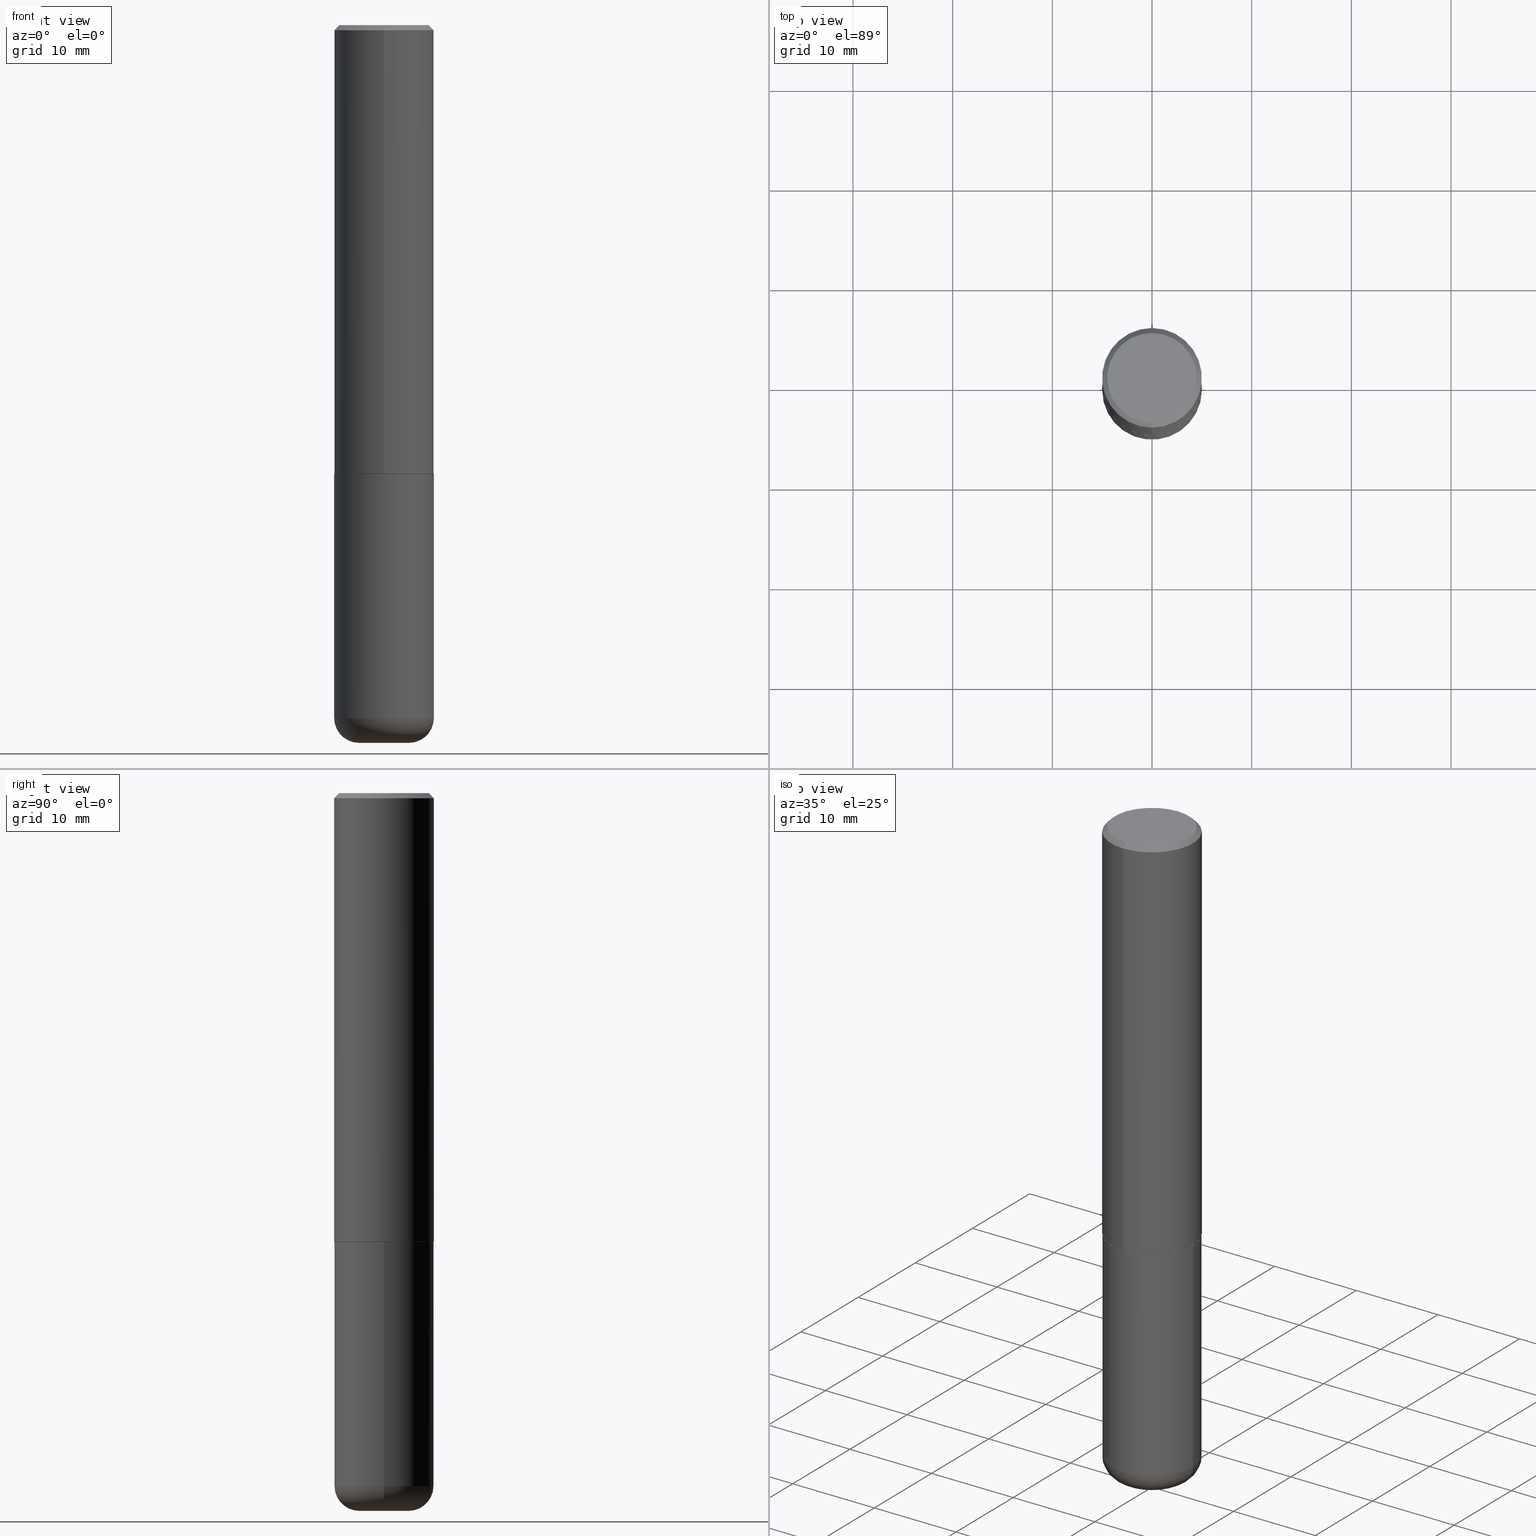
[diagram: canonical four-view strip — front | top / right | iso, engineering-drawing reading convention]
A machine part, canonical four-view strip (front | top / right | iso — engineering-drawing reading convention). The complete STEP part file that produces these views, byte-faithful:
ISO-10303-21;
HEADER;
FILE_DESCRIPTION (( 'STEP AP203' ),
    '1' );
FILE_NAME ('43482.STEP',
    '2024-03-04T05:26:18',
    ( '' ),
    ( '' ),
    'SwSTEP 2.0',
    'SolidWorks 2023',
    '' );
FILE_SCHEMA (( 'CONFIG_CONTROL_DESIGN' ));
ENDSEC;

DATA;
#1 = DIRECTION ( 'NONE',  ( 6.982962677686265133E-15, 1.000000000000000000, -3.491137977679279424E-15 ) ) ;
#2 = CIRCLE ( 'NONE', #71, 0.1968500000000001915 ) ;
#3 = LOCAL_TIME ( 0, 26, 18.00000000000000000, #180 ) ;
#4 = DIRECTION ( 'NONE',  ( -6.982962677686265133E-15, -1.000000000000000000, 4.184602492209747448E-15 ) ) ;
#5 = CARTESIAN_POINT ( 'NONE',  ( 0.000000000000000000, 0.000000000000000000, 0.000000000000000000 ) ) ;
#6 = DIRECTION ( 'NONE',  ( -1.000000000000000000, 7.105427357601001859E-15, 0.000000000000000000 ) ) ;
#7 = CARTESIAN_POINT ( 'NONE',  ( 4.332805681799319957E-29, -6.177923161224234260E-15, -1.770599999999999730 ) ) ;
#8 = VERTEX_POINT ( 'NONE', #18 ) ;
#9 =( NAMED_UNIT ( * ) SI_UNIT ( $, .STERADIAN. ) SOLID_ANGLE_UNIT ( ) );
#10 = ORIENTED_EDGE ( 'NONE', *, *, #264, .T. ) ;
#11 = DIRECTION ( 'NONE',  ( 1.000000000000000000, -6.982962677686266711E-15, 4.876176775795935793E-29 ) ) ;
#12 = VERTEX_POINT ( 'NONE', #279 ) ;
#13 = FACE_OUTER_BOUND ( 'NONE', #137, .T. ) ;
#14 = ORIENTED_EDGE ( 'NONE', *, *, #333, .T. ) ;
#15 = AXIS2_PLACEMENT_3D ( 'NONE', #125, #227, #357 ) ;
#16 = ORIENTED_EDGE ( 'NONE', *, *, #79, .F. ) ;
#17 = ADVANCED_FACE ( 'NONE', ( #216 ), #177, .F. ) ;
#18 = CARTESIAN_POINT ( 'NONE',  ( 0.09845000000000002360, -1.058442567870299660E-14, -2.834600000000000453 ) ) ;
#19 = PERSON_AND_ORGANIZATION ( #120, #94 ) ;
#20 = CARTESIAN_POINT ( 'NONE',  ( -1.350489030861325429E-15, -0.1968500000000000805, -0.01999999999999935510 ) ) ;
#21 = CIRCLE ( 'NONE', #329, 0.09845000000000002360 ) ;
#22 = AXIS2_PLACEMENT_3D ( 'NONE', #36, #394, #239 ) ;
#23 = ORIENTED_EDGE ( 'NONE', *, *, #264, .F. ) ;
#24 = DIRECTION ( 'NONE',  ( -2.445468806185136597E-29, 3.491481338843145583E-15, 1.000000000000000000 ) ) ;
#25 = DIRECTION ( 'NONE',  ( -2.447083294814932914E-29, 3.489169299234291357E-15, 1.000000000000000000 ) ) ;
#26 = EDGE_CURVE ( 'NONE', #295, #238, #412, .T. ) ;
#27 = CIRCLE ( 'NONE', #259, 0.1968500000000000250 ) ;
#28 = LOCAL_TIME ( 0, 26, 18.00000000000000000, #341 ) ;
#29 = CYLINDRICAL_SURFACE ( 'NONE', #317, 0.1968499999999999694 ) ;
#30 = CARTESIAN_POINT ( 'NONE',  ( 6.691291747483769253E-29, -9.553391239342614783E-15, -2.736199999999999743 ) ) ;
#31 = DIRECTION ( 'NONE',  ( -2.445468806185136597E-29, 3.491481338843145583E-15, 1.000000000000000000 ) ) ;
#32 = AXIS2_PLACEMENT_3D ( 'NONE', #62, #367, #95 ) ;
#33 = EDGE_CURVE ( 'NONE', #295, #185, #373, .T. ) ;
#34 = LINE ( 'NONE', #89, #157 ) ;
#35 = FACE_OUTER_BOUND ( 'NONE', #204, .T. ) ;
#36 = CARTESIAN_POINT ( 'NONE',  ( 6.931925878012389760E-29, -9.896953003084782463E-15, -2.834600000000000453 ) ) ;
#37 = ORIENTED_EDGE ( 'NONE', *, *, #377, .T. ) ;
#38 = VECTOR ( 'NONE', #312, 39.37007874015748143 ) ;
#39 = AXIS2_PLACEMENT_3D ( 'NONE', #194, #382, #287 ) ;
#40 = VERTEX_POINT ( 'NONE', #352 ) ;
#41 = EDGE_LOOP ( 'NONE', ( #108, #14, #395, #402 ) ) ;
#42 = PERSON_AND_ORGANIZATION_ROLE ( 'design_owner' ) ;
#43 = EDGE_LOOP ( 'NONE', ( #69, #297, #247, #269 ) ) ;
#44 = ADVANCED_FACE ( 'NONE', ( #51 ), #93, .T. ) ;
#45 = DIRECTION ( 'NONE',  ( 2.438088387897960049E-29, -3.491481338843145188E-15, -1.000000000000000000 ) ) ;
#46 = VERTEX_POINT ( 'NONE', #20 ) ;
#47 = DIRECTION ( 'NONE',  ( -2.445468806185136597E-29, 3.491481338843145583E-15, 1.000000000000000000 ) ) ;
#48 = DIRECTION ( 'NONE',  ( 1.000000000000000000, -6.982962677686273021E-15, 0.000000000000000000 ) ) ;
#49 = DIRECTION ( 'NONE',  ( -4.851104656540955597E-15, -0.7071067811865487940, -0.7071067811865461294 ) ) ;
#50 = COORDINATED_UNIVERSAL_TIME_OFFSET ( 5, 0, .BEHIND. ) ;
#51 = FACE_OUTER_BOUND ( 'NONE', #302, .T. ) ;
#52 = EDGE_CURVE ( 'NONE', #234, #46, #305, .T. ) ;
#53 = ORIENTED_EDGE ( 'NONE', *, *, #360, .T. ) ;
#54 = DIRECTION ( 'NONE',  ( -2.445468806185136877E-29, 3.491481338843145188E-15, 1.000000000000000000 ) ) ;
#55 = CIRCLE ( 'NONE', #221, 0.1968500000000000250 ) ;
#56 = CARTESIAN_POINT ( 'NONE',  ( 1.395150661665000474E-15, 0.1958499999999938068, -1.771600000000000508 ) ) ;
#57 = FACE_OUTER_BOUND ( 'NONE', #131, .T. ) ;
#58 = DIRECTION ( 'NONE',  ( 1.000000000000000000, -6.982962677686264344E-15, 4.883557194083112340E-29 ) ) ;
#59 = VECTOR ( 'NONE', #169, 39.37007874015748143 ) ;
#60 = CARTESIAN_POINT ( 'NONE',  ( 4.894166589629877283E-31, -6.978338598468595286E-17, -0.02000000000000004205 ) ) ;
#61 = EDGE_CURVE ( 'NONE', #196, #234, #296, .T. ) ;
#62 = CARTESIAN_POINT ( 'NONE',  ( 4.894166589629877283E-31, -6.978338598468595286E-17, -0.02000000000000004205 ) ) ;
#63 = ORIENTED_EDGE ( 'NONE', *, *, #104, .T. ) ;
#64 = DIRECTION ( 'NONE',  ( 1.000000000000000000, -6.982962677686273810E-15, 0.000000000000000000 ) ) ;
#65 = ORIENTED_EDGE ( 'NONE', *, *, #369, .F. ) ;
#66 = CYLINDRICAL_SURFACE ( 'NONE', #144, 0.1968499999999999694 ) ;
#67 = CIRCLE ( 'NONE', #311, 0.1968500000000001915 ) ;
#68 = ORIENTED_EDGE ( 'NONE', *, *, #403, .F. ) ;
#69 = ORIENTED_EDGE ( 'NONE', *, *, #217, .F. ) ;
#70 = ORIENTED_EDGE ( 'NONE', *, *, #274, .T. ) ;
#71 = AXIS2_PLACEMENT_3D ( 'NONE', #281, #84, #182 ) ;
#72 = ORIENTED_EDGE ( 'NONE', *, *, #381, .T. ) ;
#73 = LOCAL_TIME ( 0, 26, 18.00000000000000000, #76 ) ;
#74 = APPROVAL_ROLE ( '' ) ;
#75 = DIRECTION ( 'NONE',  ( 1.000000000000000000, -6.982962677686264344E-15, 4.883557194083112340E-29 ) ) ;
#76 = COORDINATED_UNIVERSAL_TIME_OFFSET ( 5, 0, .BEHIND. ) ;
#77 = FACE_OUTER_BOUND ( 'NONE', #102, .T. ) ;
#78 = CC_DESIGN_DATE_AND_TIME_ASSIGNMENT ( #141, #276, ( #413 ) ) ;
#79 = EDGE_CURVE ( 'NONE', #185, #46, #316, .T. ) ;
#80 = PERSON_AND_ORGANIZATION_ROLE ( 'design_supplier' ) ;
#81 = CARTESIAN_POINT ( 'NONE',  ( -1.374596203102542200E-15, -0.1968500000000001082, 6.868429765542706433E-16 ) ) ;
#82 = AXIS2_PLACEMENT_3D ( 'NONE', #232, #203, #294 ) ;
#83 = APPROVAL_STATUS ( 'not_yet_approved' ) ;
#84 = DIRECTION ( 'NONE',  ( -2.447083294814932914E-29, 3.489169299234290962E-15, 1.000000000000000000 ) ) ;
#85 = ADVANCED_FACE ( 'NONE', ( #179 ), #212, .T. ) ;
#86 = CARTESIAN_POINT ( 'NONE',  ( -0.09845000000000000973, -8.853861915986796673E-15, -2.736199999999999743 ) ) ;
#87 = CARTESIAN_POINT ( 'NONE',  ( 0.1968500000000001915, -1.092798744244515797E-14, -2.736199999999999743 ) ) ;
#88 = CIRCLE ( 'NONE', #39, 0.1958499999999999686 ) ;
#89 = CARTESIAN_POINT ( 'NONE',  ( 0.1968499999999999694, -1.374596203102541411E-15, 9.598753983154298056E-30 ) ) ;
#90 = CARTESIAN_POINT ( 'NONE',  ( -1.367613240424811418E-15, -0.1958500000000061581, -1.771599999999998953 ) ) ;
#91 = CARTESIAN_POINT ( 'NONE',  ( -4.053130985315826548E-29, -2.562817966197909100E-14, -2.834600000000000453 ) ) ;
#92 = ADVANCED_FACE ( 'NONE', ( #273 ), #344, .F. ) ;
#93 = CONICAL_SURFACE ( 'NONE', #339, 0.1958499999999999686, 0.7853981633975165577 ) ;
#94 = ORGANIZATION ( 'UNSPECIFIED', 'UNSPECIFIED', '' ) ;
#95 = DIRECTION ( 'NONE',  ( -6.982962677686265133E-15, -1.000000000000000000, 3.491137977679279424E-15 ) ) ;
#96 = DIRECTION ( 'NONE',  ( -2.445468806185136877E-29, 3.491481338843145188E-15, 1.000000000000000000 ) ) ;
#97 = EDGE_LOOP ( 'NONE', ( #391, #99 ) ) ;
#98 =( NAMED_UNIT ( * ) PLANE_ANGLE_UNIT ( ) SI_UNIT ( $, .RADIAN. ) );
#99 = ORIENTED_EDGE ( 'NONE', *, *, #190, .T. ) ;
#100 = AXIS2_PLACEMENT_3D ( 'NONE', #414, #410, #314 ) ;
#101 = FACE_OUTER_BOUND ( 'NONE', #266, .T. ) ;
#102 = EDGE_LOOP ( 'NONE', ( #372, #72 ) ) ;
#103 = PRODUCT_RELATED_PRODUCT_CATEGORY ( 'detail', '', ( #230 ) ) ;
#104 = EDGE_CURVE ( 'NONE', #283, #8, #21, .T. ) ;
#105 = CARTESIAN_POINT ( 'NONE',  ( -0.1968499999999999694, 1.398703375343756999E-15, -9.682923725166782276E-30 ) ) ;
#106 = ORIENTED_EDGE ( 'NONE', *, *, #104, .F. ) ;
#107 = CALENDAR_DATE ( 2024, 4, 3 ) ;
#108 = ORIENTED_EDGE ( 'NONE', *, *, #315, .T. ) ;
#109 = AXIS2_PLACEMENT_3D ( 'NONE', #140, #245, #147 ) ;
#110 = EDGE_LOOP ( 'NONE', ( #338, #63, #170, #361 ) ) ;
#111 = CONICAL_SURFACE ( 'NONE', #324, 0.1968500000000000250, 0.7853981633974467247 ) ;
#112 = PERSON_AND_ORGANIZATION ( #120, #94 ) ;
#113 = PLANE ( 'NONE',  #405 ) ;
#114 = DATE_AND_TIME ( #206, #288 ) ;
#115 = CARTESIAN_POINT ( 'NONE',  ( -1.367613240424811418E-15, -0.1958500000000061581, -1.771599999999998953 ) ) ;
#116 = CLOSED_SHELL ( 'NONE', ( #44, #407, #174, #257, #161, #235, #92, #17 ) ) ;
#117 = APPROVAL ( #83, 'UNSPECIFIED' ) ;
#118 = VECTOR ( 'NONE', #218, 39.37007874015748143 ) ;
#119 = DIRECTION ( 'NONE',  ( 2.438088387897960049E-29, -3.491481338843145188E-15, -1.000000000000000000 ) ) ;
#120 = PERSON ( 'UNSPECIFIED', 'UNSPECIFIED', 'UNSPECIFIED', ('UNSPECIFIED'), ('UNSPECIFIED'), ('UNSPECIFIED') ) ;
#121 = DIRECTION ( 'NONE',  ( 2.447083294814932914E-29, -3.489169299234290962E-15, -1.000000000000000000 ) ) ;
#122 = AXIS2_PLACEMENT_3D ( 'NONE', #60, #358, #1 ) ;
#123 = CC_DESIGN_PERSON_AND_ORGANIZATION_ASSIGNMENT ( #280, #80, ( #205 ) ) ;
#124 = DIRECTION ( 'NONE',  ( -2.447083294814932914E-29, 3.489169299234290962E-15, 1.000000000000000000 ) ) ;
#125 = CARTESIAN_POINT ( 'NONE',  ( 0.000000000000000000, 0.000000000000000000, 0.000000000000000000 ) ) ;
#126 = EDGE_CURVE ( 'NONE', #40, #231, #27, .T. ) ;
#127 = CC_DESIGN_APPROVAL ( #184, ( #413 ) ) ;
#128 = DIRECTION ( 'NONE',  ( -1.000000000000000000, 6.982962677686265922E-15, -4.876176775795935793E-29 ) ) ;
#129 = ORIENTED_EDGE ( 'NONE', *, *, #26, .F. ) ;
#130 = CARTESIAN_POINT ( 'NONE',  ( 0.000000000000000000, 0.000000000000000000, 0.000000000000000000 ) ) ;
#131 = EDGE_LOOP ( 'NONE', ( #263, #106 ) ) ;
#132 = CYLINDRICAL_SURFACE ( 'NONE', #398, 0.1968500000000001082 ) ;
#133 = ORIENTED_EDGE ( 'NONE', *, *, #315, .F. ) ;
#134 = DIRECTION ( 'NONE',  ( -6.982962677686266711E-15, -1.000000000000000000, 3.491481338843145583E-15 ) ) ;
#135 = ORIENTED_EDGE ( 'NONE', *, *, #52, .F. ) ;
#136 = COORDINATED_UNIVERSAL_TIME_OFFSET ( 5, 0, .BEHIND. ) ;
#137 = EDGE_LOOP ( 'NONE', ( #368, #335, #168, #345 ) ) ;
#138 = EDGE_CURVE ( 'NONE', #185, #271, #2, .T. ) ;
#139 = CALENDAR_DATE ( 2024, 4, 3 ) ;
#140 = CARTESIAN_POINT ( 'NONE',  ( 5.322760174831130967E-46, -7.589447988370287342E-32, -2.175144665532800578E-17 ) ) ;
#141 = DATE_AND_TIME ( #107, #28 ) ;
#142 = AXIS2_PLACEMENT_3D ( 'NONE', #150, #47, #75 ) ;
#143 = CARTESIAN_POINT ( 'NONE',  ( 4.332392537037587642E-29, -6.185508339894515992E-15, -1.771599999999999842 ) ) ;
#144 = AXIS2_PLACEMENT_3D ( 'NONE', #162, #392, #11 ) ;
#145 = EDGE_CURVE ( 'NONE', #12, #397, #383, .T. ) ;
#146 = CARTESIAN_POINT ( 'NONE',  ( -1.350489030861325429E-15, -0.1968500000000000805, -0.01999999999999935510 ) ) ;
#147 = DIRECTION ( 'NONE',  ( -6.982962677686265922E-15, -1.000000000000000000, 3.489169299234290962E-15 ) ) ;
#148 = ADVANCED_FACE ( 'NONE', ( #77 ), #113, .F. ) ;
#149 = MANIFOLD_SOLID_BREP ( 'Body-Move/Copy2[2]', #116 ) ;
#150 = CARTESIAN_POINT ( 'NONE',  ( 6.691291747483769253E-29, -9.553391239342614783E-15, -2.736199999999999743 ) ) ;
#151 = CIRCLE ( 'NONE', #364, 0.1768500000000000627 ) ;
#152 = CARTESIAN_POINT ( 'NONE',  ( 1.374596203102542003E-15, 0.1968499999999999417, -0.02000000000000072900 ) ) ;
#153 = FACE_OUTER_BOUND ( 'NONE', #163, .T. ) ;
#154 = CC_DESIGN_PERSON_AND_ORGANIZATION_ASSIGNMENT ( #19, #215, ( #413 ) ) ;
#155 = EDGE_CURVE ( 'NONE', #46, #363, #220, .T. ) ;
#156 = DIRECTION ( 'NONE',  ( -1.000000000000000000, 6.982962677686265922E-15, -4.876176775795935793E-29 ) ) ;
#157 = VECTOR ( 'NONE', #54, 39.37007874015748143 ) ;
#158 = FACE_OUTER_BOUND ( 'NONE', #41, .T. ) ;
#159 = ORIENTED_EDGE ( 'NONE', *, *, #377, .F. ) ;
#160 = FACE_OUTER_BOUND ( 'NONE', #299, .T. ) ;
#161 = ADVANCED_FACE ( 'NONE', ( #258 ), #191, .T. ) ;
#162 = CARTESIAN_POINT ( 'NONE',  ( 0.000000000000000000, 0.000000000000000000, 0.000000000000000000 ) ) ;
#163 = EDGE_LOOP ( 'NONE', ( #327, #375, #166, #23 ) ) ;
#164 = AXIS2_PLACEMENT_3D ( 'NONE', #143, #277, #408 ) ;
#165 = LOCAL_TIME ( 0, 26, 18.00000000000000000, #136 ) ;
#166 = ORIENTED_EDGE ( 'NONE', *, *, #155, .T. ) ;
#167 = CARTESIAN_POINT ( 'NONE',  ( 1.374596203102542003E-15, 0.1968499999999999417, -0.02000000000000072900 ) ) ;
#168 = ORIENTED_EDGE ( 'NONE', *, *, #301, .T. ) ;
#169 = DIRECTION ( 'NONE',  ( -2.447083294814932914E-29, 3.489169299234291357E-15, 1.000000000000000000 ) ) ;
#170 = ORIENTED_EDGE ( 'NONE', *, *, #403, .T. ) ;
#171 = AXIS2_PLACEMENT_3D ( 'NONE', #411, #187, #308 ) ;
#172 =( GEOMETRIC_REPRESENTATION_CONTEXT ( 3 ) GLOBAL_UNCERTAINTY_ASSIGNED_CONTEXT ( ( #388 ) ) GLOBAL_UNIT_ASSIGNED_CONTEXT ( ( #359, #98, #9 ) ) REPRESENTATION_CONTEXT ( 'NONE', 'WORKASPACE' ) );
#173 = CARTESIAN_POINT ( 'NONE',  ( -0.1968499999999999694, -6.470746414274807600E-15, -1.771599999999999842 ) ) ;
#174 = ADVANCED_FACE ( 'NONE', ( #153 ), #244, .T. ) ;
#175 = EDGE_LOOP ( 'NONE', ( #129, #393 ) ) ;
#176 = APPROVAL_STATUS ( 'not_yet_approved' ) ;
#177 = PLANE ( 'NONE',  #171 ) ;
#178 = CC_DESIGN_PERSON_AND_ORGANIZATION_ASSIGNMENT ( #278, #186, ( #198 ) ) ;
#179 = FACE_OUTER_BOUND ( 'NONE', #110, .T. ) ;
#180 = COORDINATED_UNIVERSAL_TIME_OFFSET ( 5, 0, .BEHIND. ) ;
#181 = AXIS2_PLACEMENT_3D ( 'NONE', #379, #251, #209 ) ;
#182 = DIRECTION ( 'NONE',  ( -6.982962677686265133E-15, -1.000000000000000000, 4.163344669033670901E-15 ) ) ;
#183 = APPROVAL_PERSON_ORGANIZATION ( #371, #117, #74 ) ;
#184 = APPROVAL ( #270, 'UNSPECIFIED' ) ;
#185 = VERTEX_POINT ( 'NONE', #192 ) ;
#186 = PERSON_AND_ORGANIZATION_ROLE ( 'creator' ) ;
#187 = DIRECTION ( 'NONE',  ( 2.447083294814932353E-29, -3.489169299234291357E-15, -1.000000000000000000 ) ) ;
#188 = DIMENSIONAL_EXPONENTS ( 1.000000000000000000, 0.000000000000000000, 0.000000000000000000, 0.000000000000000000, 0.000000000000000000, 0.000000000000000000, 0.000000000000000000 ) ;
#189 = CARTESIAN_POINT ( 'NONE',  ( 4.894166589629877283E-31, -6.978338598468595286E-17, -0.02000000000000004205 ) ) ;
#190 = EDGE_CURVE ( 'NONE', #234, #196, #151, .T. ) ;
#191 = CYLINDRICAL_SURFACE ( 'NONE', #15, 0.1968500000000001082 ) ;
#192 = CARTESIAN_POINT ( 'NONE',  ( -1.374596203102499207E-15, -0.1968500000000063532, -1.770599999999998841 ) ) ;
#193 = CIRCLE ( 'NONE', #32, 0.1968500000000000250 ) ;
#194 = CARTESIAN_POINT ( 'NONE',  ( 4.335252765094134392E-29, -6.181412330523469135E-15, -1.771599999999999842 ) ) ;
#195 = CARTESIAN_POINT ( 'NONE',  ( 0.000000000000000000, 0.000000000000000000, 0.000000000000000000 ) ) ;
#196 = VERTEX_POINT ( 'NONE', #253 ) ;
#197 = ORIENTED_EDGE ( 'NONE', *, *, #33, .F. ) ;
#198 = PRODUCT_DEFINITION ( 'UNKNOWN', '', #205, #291 ) ;
#199 = VECTOR ( 'NONE', #222, 39.37007874015748143 ) ;
#200 = ORIENTED_EDGE ( 'NONE', *, *, #138, .F. ) ;
#201 = PERSON_AND_ORGANIZATION ( #120, #94 ) ;
#202 = ORIENTED_EDGE ( 'NONE', *, *, #217, .T. ) ;
#203 = DIRECTION ( 'NONE',  ( -2.445468806185136597E-29, 3.491481338843145583E-15, 1.000000000000000000 ) ) ;
#204 = EDGE_LOOP ( 'NONE', ( #53, #70, #133, #68 ) ) ;
#205 = PRODUCT_DEFINITION_FORMATION_WITH_SPECIFIED_SOURCE ( 'ANY', '', #230, .NOT_KNOWN. ) ;
#206 = CALENDAR_DATE ( 2024, 4, 3 ) ;
#207 = DIRECTION ( 'NONE',  ( -6.982962677686265133E-15, -1.000000000000000000, 4.184602492209747448E-15 ) ) ;
#208 = CALENDAR_DATE ( 2024, 4, 3 ) ;
#209 = DIRECTION ( 'NONE',  ( -6.982962677686265922E-15, -1.000000000000000000, 3.489169299234291357E-15 ) ) ;
#210 = CALENDAR_DATE ( 2024, 4, 3 ) ;
#211 = CARTESIAN_POINT ( 'NONE',  ( 4.332392537037587642E-29, -6.185508339894515992E-15, -1.771599999999999842 ) ) ;
#212 = TOROIDAL_SURFACE ( 'NONE', #142, 0.09845000000000000973, 0.09840000000000038993 ) ;
#213 = CC_DESIGN_APPROVAL ( #309, ( #205 ) ) ;
#214 = CARTESIAN_POINT ( 'NONE',  ( 6.691291747483769253E-29, -9.553391239342614783E-15, -2.736199999999999743 ) ) ;
#215 = PERSON_AND_ORGANIZATION_ROLE ( 'classification_officer' ) ;
#216 = FACE_OUTER_BOUND ( 'NONE', #97, .T. ) ;
#217 = EDGE_CURVE ( 'NONE', #238, #271, #284, .T. ) ;
#218 = DIRECTION ( 'NONE',  ( 4.937700262164540154E-15, 0.7071067811865440200, -0.7071067811865511255 ) ) ;
#219 = DIRECTION ( 'NONE',  ( -2.445468806185136597E-29, 3.491481338843145583E-15, 1.000000000000000000 ) ) ;
#220 = CIRCLE ( 'NONE', #236, 0.1968500000000000250 ) ;
#221 = AXIS2_PLACEMENT_3D ( 'NONE', #30, #31, #356 ) ;
#222 = DIRECTION ( 'NONE',  ( 5.024295867788404755E-15, 0.7071067811865981989, 0.7071067811864968355 ) ) ;
#223 = DATE_AND_TIME ( #210, #73 ) ;
#224 = DIRECTION ( 'NONE',  ( -2.445468806185136597E-29, 3.491481338843145583E-15, 1.000000000000000000 ) ) ;
#225 = CC_DESIGN_DATE_AND_TIME_ASSIGNMENT ( #246, #272, ( #198 ) ) ;
#226 = EDGE_CURVE ( 'NONE', #238, #295, #88, .T. ) ;
#227 = DIRECTION ( 'NONE',  ( -2.447083294814932914E-29, 3.489169299234290962E-15, 1.000000000000000000 ) ) ;
#228 = AXIS2_PLACEMENT_3D ( 'NONE', #300, #134, #64 ) ;
#229 = DIRECTION ( 'NONE',  ( -2.447083294814932914E-29, 3.489169299234290962E-15, 1.000000000000000000 ) ) ;
#230 = PRODUCT ( '43482', '43482', '', ( #337 ) ) ;
#231 = VERTEX_POINT ( 'NONE', #87 ) ;
#232 = CARTESIAN_POINT ( 'NONE',  ( 4.332392537037587642E-29, -6.185508339894515992E-15, -1.771599999999999842 ) ) ;
#233 = CC_DESIGN_PERSON_AND_ORGANIZATION_ASSIGNMENT ( #349, #401, ( #205 ) ) ;
#234 = VERTEX_POINT ( 'NONE', #386 ) ;
#235 = ADVANCED_FACE ( 'NONE', ( #254 ), #406, .T. ) ;
#236 = AXIS2_PLACEMENT_3D ( 'NONE', #189, #418, #285 ) ;
#237 = APPROVAL_PERSON_ORGANIZATION ( #409, #309, #313 ) ;
#238 = VERTEX_POINT ( 'NONE', #56 ) ;
#239 = DIRECTION ( 'NONE',  ( 1.000000000000000000, -6.982962677686273021E-15, 0.000000000000000000 ) ) ;
#240 = ORIENTED_EDGE ( 'NONE', *, *, #155, .F. ) ;
#241 = APPLICATION_CONTEXT ( 'configuration controlled 3d designs of mechanical parts and assemblies' ) ;
#242 = APPLICATION_PROTOCOL_DEFINITION ( 'international standard', 'config_control_design', 1994, #370 ) ;
#243 = ORIENTED_EDGE ( 'NONE', *, *, #26, .T. ) ;
#244 = CONICAL_SURFACE ( 'NONE', #122, 0.1968500000000000250, 0.7853981633974467247 ) ;
#245 = DIRECTION ( 'NONE',  ( -2.447083294814932914E-29, 3.489169299234290962E-15, 1.000000000000000000 ) ) ;
#246 = DATE_AND_TIME ( #139, #165 ) ;
#247 = ORIENTED_EDGE ( 'NONE', *, *, #33, .T. ) ;
#248 = APPROVAL_DATE_TIME ( #343, #117 ) ;
#249 = CARTESIAN_POINT ( 'NONE',  ( 4.335252765094134392E-29, -6.181412330523469135E-15, -1.771599999999999842 ) ) ;
#250 = CIRCLE ( 'NONE', #22, 0.09845000000000002360 ) ;
#251 = DIRECTION ( 'NONE',  ( -2.447083294814932353E-29, 3.489169299234291357E-15, 1.000000000000000000 ) ) ;
#252 = CARTESIAN_POINT ( 'NONE',  ( -0.09845000000000002360, -8.676055771863907124E-15, -2.834600000000000453 ) ) ;
#253 = CARTESIAN_POINT ( 'NONE',  ( 1.304766576325679099E-15, 0.1768500000000000627, -6.388110372249125976E-16 ) ) ;
#254 = FACE_OUTER_BOUND ( 'NONE', #43, .T. ) ;
#255 = AXIS2_PLACEMENT_3D ( 'NONE', #323, #256, #4 ) ;
#256 = DIRECTION ( 'NONE',  ( -2.447083294814932914E-29, 3.489169299234290962E-15, 1.000000000000000000 ) ) ;
#257 = ADVANCED_FACE ( 'NONE', ( #160 ), #111, .T. ) ;
#258 = FACE_OUTER_BOUND ( 'NONE', #332, .T. ) ;
#259 = AXIS2_PLACEMENT_3D ( 'NONE', #214, #350, #404 ) ;
#260 = APPROVAL_PERSON_ORGANIZATION ( #112, #184, #374 ) ;
#261 = ADVANCED_FACE ( 'NONE', ( #35 ), #348, .T. ) ;
#262 =( LENGTH_UNIT ( ) NAMED_UNIT ( * ) SI_UNIT ( $, .METRE. ) );
#263 = ORIENTED_EDGE ( 'NONE', *, *, #360, .F. ) ;
#264 = EDGE_CURVE ( 'NONE', #196, #363, #322, .T. ) ;
#265 = DIRECTION ( 'NONE',  ( 0.000000000000000000, 0.000000000000000000, 1.000000000000000000 ) ) ;
#266 = EDGE_LOOP ( 'NONE', ( #366, #37, #240, #16 ) ) ;
#267 = ORIENTED_EDGE ( 'NONE', *, *, #79, .T. ) ;
#268 = DIRECTION ( 'NONE',  ( -6.982962677686265133E-15, -1.000000000000000000, 4.163344669033670901E-15 ) ) ;
#269 = ORIENTED_EDGE ( 'NONE', *, *, #416, .F. ) ;
#270 = APPROVAL_STATUS ( 'not_yet_approved' ) ;
#271 = VERTEX_POINT ( 'NONE', #380 ) ;
#272 = DATE_TIME_ROLE ( 'creation_date' ) ;
#273 = FACE_OUTER_BOUND ( 'NONE', #175, .T. ) ;
#274 = EDGE_CURVE ( 'NONE', #283, #40, #378, .T. ) ;
#275 = AXIS2_PLACEMENT_3D ( 'NONE', #91, #45, #128 ) ;
#276 = DATE_TIME_ROLE ( 'classification_date' ) ;
#277 = DIRECTION ( 'NONE',  ( -2.445468806185136597E-29, 3.491481338843145583E-15, 1.000000000000000000 ) ) ;
#278 = PERSON_AND_ORGANIZATION ( #120, #94 ) ;
#279 = CARTESIAN_POINT ( 'NONE',  ( 0.1968499999999999694, -7.560104542997057600E-15, -1.771599999999999842 ) ) ;
#280 = PERSON_AND_ORGANIZATION ( #120, #94 ) ;
#281 = CARTESIAN_POINT ( 'NONE',  ( 4.332805681799319957E-29, -6.177923161224234260E-15, -1.770599999999999730 ) ) ;
#282 = AXIS2_PLACEMENT_3D ( 'NONE', #130, #265, #362 ) ;
#283 = VERTEX_POINT ( 'NONE', #252 ) ;
#284 = LINE ( 'NONE', #355, #199 ) ;
#285 = DIRECTION ( 'NONE',  ( -6.982962677686265133E-15, -1.000000000000000000, 3.491137977679279424E-15 ) ) ;
#286 = CLOSED_SHELL ( 'NONE', ( #310, #261, #148, #387, #85, #320 ) ) ;
#287 = DIRECTION ( 'NONE',  ( -6.982962677686265133E-15, -1.000000000000000000, 4.184602492209747448E-15 ) ) ;
#288 = LOCAL_TIME ( 0, 26, 18.00000000000000000, #50 ) ;
#289 = PLANE ( 'NONE',  #275 ) ;
#290 = MANIFOLD_SOLID_BREP ( 'Body-Move/Copy2[1]', #286 ) ;
#291 = DESIGN_CONTEXT ( 'detailed design', #370, 'design' ) ;
#292 = CARTESIAN_POINT ( 'NONE',  ( 6.691291747483769253E-29, -9.553391239342614783E-15, -2.736199999999999743 ) ) ;
#293 = APPROVAL_DATE_TIME ( #223, #184 ) ;
#294 = DIRECTION ( 'NONE',  ( 1.000000000000000000, -6.982962677686265133E-15, 0.000000000000000000 ) ) ;
#295 = VERTEX_POINT ( 'NONE', #90 ) ;
#296 = CIRCLE ( 'NONE', #109, 0.1768500000000000627 ) ;
#297 = ORIENTED_EDGE ( 'NONE', *, *, #226, .T. ) ;
#298 = DIRECTION ( 'NONE',  ( -6.982962677686265922E-15, -1.000000000000000000, 3.489169299234291357E-15 ) ) ;
#299 = EDGE_LOOP ( 'NONE', ( #135, #328, #10, #400 ) ) ;
#300 = CARTESIAN_POINT ( 'NONE',  ( 0.09845000000000000973, -1.024086391496082892E-14, -2.736199999999999743 ) ) ;
#301 = EDGE_CURVE ( 'NONE', #231, #12, #34, .T. ) ;
#302 = EDGE_LOOP ( 'NONE', ( #243, #202, #200, #197 ) ) ;
#303 = CIRCLE ( 'NONE', #228, 0.09840000000000037605 ) ;
#304 = ORIENTED_EDGE ( 'NONE', *, *, #416, .T. ) ;
#305 = LINE ( 'NONE', #146, #389 ) ;
#306 = CC_DESIGN_PERSON_AND_ORGANIZATION_ASSIGNMENT ( #201, #42, ( #230 ) ) ;
#307 = APPROVAL_DATE_TIME ( #114, #309 ) ;
#308 = DIRECTION ( 'NONE',  ( 6.982962677686265922E-15, 1.000000000000000000, -3.489169299234291357E-15 ) ) ;
#309 = APPROVAL ( #176, 'UNSPECIFIED' ) ;
#310 = ADVANCED_FACE ( 'NONE', ( #158 ), #29, .T. ) ;
#311 = AXIS2_PLACEMENT_3D ( 'NONE', #7, #331, #268 ) ;
#312 = DIRECTION ( 'NONE',  ( -4.937700262164884886E-15, -0.7071067811865933139, 0.7071067811865017205 ) ) ;
#313 = APPROVAL_ROLE ( '' ) ;
#314 = DIRECTION ( 'NONE',  ( -6.982962677686265133E-15, -1.000000000000000000, 4.184602492209747448E-15 ) ) ;
#315 = EDGE_CURVE ( 'NONE', #231, #40, #55, .T. ) ;
#316 = LINE ( 'NONE', #81, #346 ) ;
#317 = AXIS2_PLACEMENT_3D ( 'NONE', #5, #219, #321 ) ;
#318 = CARTESIAN_POINT ( 'NONE',  ( 4.894166589629877283E-31, -6.978338598468595286E-17, -0.02000000000000004205 ) ) ;
#319 = CC_DESIGN_SECURITY_CLASSIFICATION ( #413, ( #205 ) ) ;
#320 = ADVANCED_FACE ( 'NONE', ( #57 ), #289, .T. ) ;
#321 = DIRECTION ( 'NONE',  ( 1.000000000000000000, -6.982962677686266711E-15, 4.876176775795935793E-29 ) ) ;
#322 = LINE ( 'NONE', #152, #118 ) ;
#323 = CARTESIAN_POINT ( 'NONE',  ( 4.335252765094134392E-29, -6.181412330523469135E-15, -1.771599999999999842 ) ) ;
#324 = AXIS2_PLACEMENT_3D ( 'NONE', #318, #121, #385 ) ;
#325 = CARTESIAN_POINT ( 'NONE',  ( 5.322760174831130967E-46, -7.589447988370287342E-32, -2.175144665532800578E-17 ) ) ;
#326 = LENGTH_MEASURE_WITH_UNIT ( LENGTH_MEASURE( 0.02539999999999999897 ), #262 );
#327 = ORIENTED_EDGE ( 'NONE', *, *, #190, .F. ) ;
#328 = ORIENTED_EDGE ( 'NONE', *, *, #61, .F. ) ;
#329 = AXIS2_PLACEMENT_3D ( 'NONE', #342, #24, #48 ) ;
#330 = VECTOR ( 'NONE', #96, 39.37007874015748143 ) ;
#331 = DIRECTION ( 'NONE',  ( -2.447083294814932914E-29, 3.489169299234290962E-15, 1.000000000000000000 ) ) ;
#332 = EDGE_LOOP ( 'NONE', ( #159, #304, #267, #65 ) ) ;
#333 = EDGE_CURVE ( 'NONE', #40, #397, #334, .T. ) ;
#334 = LINE ( 'NONE', #105, #330 ) ;
#335 = ORIENTED_EDGE ( 'NONE', *, *, #126, .T. ) ;
#336 = SHAPE_DEFINITION_REPRESENTATION ( #415, #417 ) ;
#337 = MECHANICAL_CONTEXT ( 'NONE', #241, 'mechanical' ) ;
#338 = ORIENTED_EDGE ( 'NONE', *, *, #274, .F. ) ;
#339 = AXIS2_PLACEMENT_3D ( 'NONE', #249, #376, #207 ) ;
#340 = AXIS2_PLACEMENT_3D ( 'NONE', #292, #224, #58 ) ;
#341 = COORDINATED_UNIVERSAL_TIME_OFFSET ( 5, 0, .BEHIND. ) ;
#342 = CARTESIAN_POINT ( 'NONE',  ( 6.931925878012389760E-29, -9.896953003084782463E-15, -2.834600000000000453 ) ) ;
#343 = DATE_AND_TIME ( #208, #3 ) ;
#344 = PLANE ( 'NONE',  #181 ) ;
#345 = ORIENTED_EDGE ( 'NONE', *, *, #381, .F. ) ;
#346 = VECTOR ( 'NONE', #25, 39.37007874015748143 ) ;
#347 = CIRCLE ( 'NONE', #82, 0.1968499999999999694 ) ;
#348 = TOROIDAL_SURFACE ( 'NONE', #340, 0.09845000000000000973, 0.09840000000000038993 ) ;
#349 = PERSON_AND_ORGANIZATION ( #120, #94 ) ;
#350 = DIRECTION ( 'NONE',  ( -2.445468806185136597E-29, 3.491481338843145583E-15, 1.000000000000000000 ) ) ;
#351 = SECURITY_CLASSIFICATION_LEVEL ( 'unclassified' ) ;
#352 = CARTESIAN_POINT ( 'NONE',  ( -0.1968500000000001915, -8.154687863998856206E-15, -2.736199999999999743 ) ) ;
#353 = DIRECTION ( 'NONE',  ( -6.982962677686265922E-15, -1.000000000000000000, 3.489169299234290962E-15 ) ) ;
#354 = AXIS2_PLACEMENT_3D ( 'NONE', #86, #384, #6 ) ;
#355 = CARTESIAN_POINT ( 'NONE',  ( 1.391597947986199181E-15, 0.1958499999999938068, -1.771600000000000508 ) ) ;
#356 = DIRECTION ( 'NONE',  ( 1.000000000000000000, -6.982962677686267499E-15, 0.000000000000000000 ) ) ;
#357 = DIRECTION ( 'NONE',  ( -6.982962677686265922E-15, -1.000000000000000000, 3.489169299234291357E-15 ) ) ;
#358 = DIRECTION ( 'NONE',  ( 2.447083294814932914E-29, -3.489169299234290962E-15, -1.000000000000000000 ) ) ;
#359 =( CONVERSION_BASED_UNIT ( 'INCH', #326 ) LENGTH_UNIT ( ) NAMED_UNIT ( #188 ) );
#360 = EDGE_CURVE ( 'NONE', #8, #283, #250, .T. ) ;
#361 = ORIENTED_EDGE ( 'NONE', *, *, #126, .F. ) ;
#362 = DIRECTION ( 'NONE',  ( 1.000000000000000000, 0.000000000000000000, 0.000000000000000000 ) ) ;
#363 = VERTEX_POINT ( 'NONE', #167 ) ;
#364 = AXIS2_PLACEMENT_3D ( 'NONE', #325, #124, #353 ) ;
#365 = APPLICATION_PROTOCOL_DEFINITION ( 'international standard', 'config_control_design', 1994, #241 ) ;
#366 = ORIENTED_EDGE ( 'NONE', *, *, #138, .T. ) ;
#367 = DIRECTION ( 'NONE',  ( -2.447083294814932914E-29, 3.489169299234290962E-15, 1.000000000000000000 ) ) ;
#368 = ORIENTED_EDGE ( 'NONE', *, *, #333, .F. ) ;
#369 = EDGE_CURVE ( 'NONE', #363, #46, #193, .T. ) ;
#370 = APPLICATION_CONTEXT ( 'configuration controlled 3d designs of mechanical parts and assemblies' ) ;
#371 = PERSON_AND_ORGANIZATION ( #120, #94 ) ;
#372 = ORIENTED_EDGE ( 'NONE', *, *, #145, .T. ) ;
#373 = LINE ( 'NONE', #115, #38 ) ;
#374 = APPROVAL_ROLE ( '' ) ;
#375 = ORIENTED_EDGE ( 'NONE', *, *, #52, .T. ) ;
#376 = DIRECTION ( 'NONE',  ( -2.447083294814932914E-29, 3.489169299234290962E-15, 1.000000000000000000 ) ) ;
#377 = EDGE_CURVE ( 'NONE', #271, #363, #399, .T. ) ;
#378 = CIRCLE ( 'NONE', #354, 0.09840000000000037605 ) ;
#379 = CARTESIAN_POINT ( 'NONE',  ( 4.335252765094134392E-29, -6.181412330523469135E-15, -1.771599999999999842 ) ) ;
#380 = CARTESIAN_POINT ( 'NONE',  ( 1.398703375343780073E-15, 0.1968499999999940020, -1.770600000000000396 ) ) ;
#381 = EDGE_CURVE ( 'NONE', #397, #12, #347, .T. ) ;
#382 = DIRECTION ( 'NONE',  ( -2.447083294814932914E-29, 3.489169299234290962E-15, 1.000000000000000000 ) ) ;
#383 = CIRCLE ( 'NONE', #164, 0.1968499999999999694 ) ;
#384 = DIRECTION ( 'NONE',  ( 7.105427357601001859E-15, 1.000000000000000000, -3.491481338843145583E-15 ) ) ;
#385 = DIRECTION ( 'NONE',  ( 6.982962677686265133E-15, 1.000000000000000000, -3.491137977679279424E-15 ) ) ;
#386 = CARTESIAN_POINT ( 'NONE',  ( -1.281884050883610492E-15, -0.1768500000000000627, 5.953081439142565614E-16 ) ) ;
#387 = ADVANCED_FACE ( 'NONE', ( #13 ), #66, .T. ) ;
#388 = UNCERTAINTY_MEASURE_WITH_UNIT (LENGTH_MEASURE( 1.000000000000000082E-05 ), #359, 'distance_accuracy_value', 'NONE');
#389 = VECTOR ( 'NONE', #49, 39.37007874015748854 ) ;
#390 = CC_DESIGN_APPROVAL ( #117, ( #198 ) ) ;
#391 = ORIENTED_EDGE ( 'NONE', *, *, #61, .T. ) ;
#392 = DIRECTION ( 'NONE',  ( -2.445468806185136597E-29, 3.491481338843145583E-15, 1.000000000000000000 ) ) ;
#393 = ORIENTED_EDGE ( 'NONE', *, *, #226, .F. ) ;
#394 = DIRECTION ( 'NONE',  ( -2.445468806185136597E-29, 3.491481338843145583E-15, 1.000000000000000000 ) ) ;
#395 = ORIENTED_EDGE ( 'NONE', *, *, #145, .F. ) ;
#396 = CARTESIAN_POINT ( 'NONE',  ( 1.398703375343757788E-15, 0.1968500000000001082, -6.868429765542706433E-16 ) ) ;
#397 = VERTEX_POINT ( 'NONE', #173 ) ;
#398 = AXIS2_PLACEMENT_3D ( 'NONE', #195, #229, #298 ) ;
#399 = LINE ( 'NONE', #396, #59 ) ;
#400 = ORIENTED_EDGE ( 'NONE', *, *, #369, .T. ) ;
#401 = PERSON_AND_ORGANIZATION_ROLE ( 'creator' ) ;
#402 = ORIENTED_EDGE ( 'NONE', *, *, #301, .F. ) ;
#403 = EDGE_CURVE ( 'NONE', #8, #231, #303, .T. ) ;
#404 = DIRECTION ( 'NONE',  ( 1.000000000000000000, -6.982962677686267499E-15, 0.000000000000000000 ) ) ;
#405 = AXIS2_PLACEMENT_3D ( 'NONE', #211, #119, #156 ) ;
#406 = CONICAL_SURFACE ( 'NONE', #255, 0.1958499999999999686, 0.7853981633975165577 ) ;
#407 = ADVANCED_FACE ( 'NONE', ( #101 ), #132, .T. ) ;
#408 = DIRECTION ( 'NONE',  ( 1.000000000000000000, -6.982962677686265133E-15, 0.000000000000000000 ) ) ;
#409 = PERSON_AND_ORGANIZATION ( #120, #94 ) ;
#410 = DIRECTION ( 'NONE',  ( -2.447083294814932914E-29, 3.489169299234290962E-15, 1.000000000000000000 ) ) ;
#411 = CARTESIAN_POINT ( 'NONE',  ( 1.234936949548816590E-15, 0.1768500000000000627, -6.279353138972485393E-16 ) ) ;
#412 = CIRCLE ( 'NONE', #100, 0.1958499999999999686 ) ;
#413 = SECURITY_CLASSIFICATION ( '', '', #351 ) ;
#414 = CARTESIAN_POINT ( 'NONE',  ( 4.335252765094134392E-29, -6.181412330523469135E-15, -1.771599999999999842 ) ) ;
#415 = PRODUCT_DEFINITION_SHAPE ( 'NONE', 'NONE',  #198 ) ;
#416 = EDGE_CURVE ( 'NONE', #271, #185, #67, .T. ) ;
#417 = ADVANCED_BREP_SHAPE_REPRESENTATION ( '43482', ( #290, #149, #282 ), #172 ) ;
#418 = DIRECTION ( 'NONE',  ( -2.447083294814932914E-29, 3.489169299234290962E-15, 1.000000000000000000 ) ) ;
ENDSEC;
END-ISO-10303-21;
